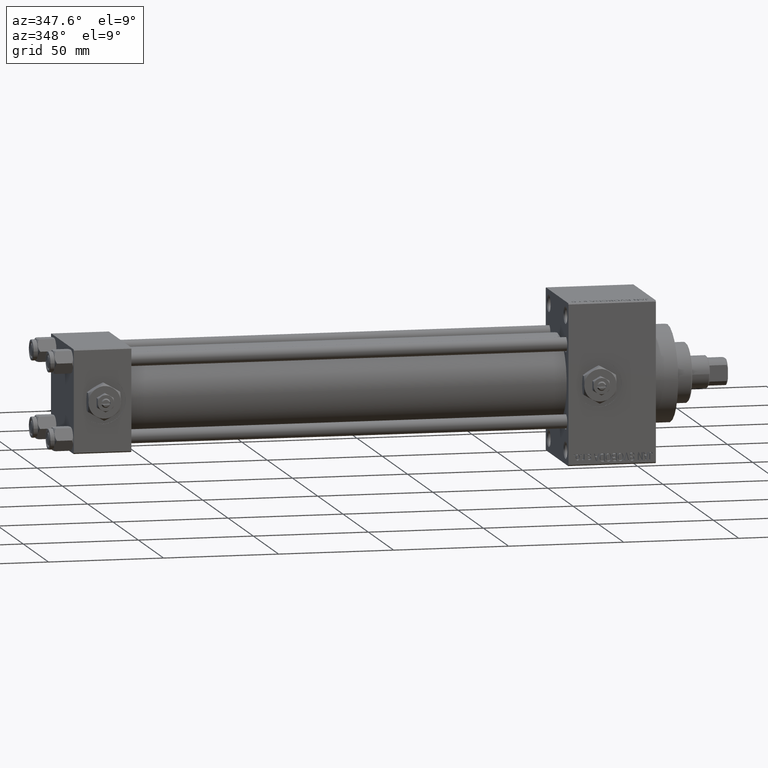
[diagram: clean part render]
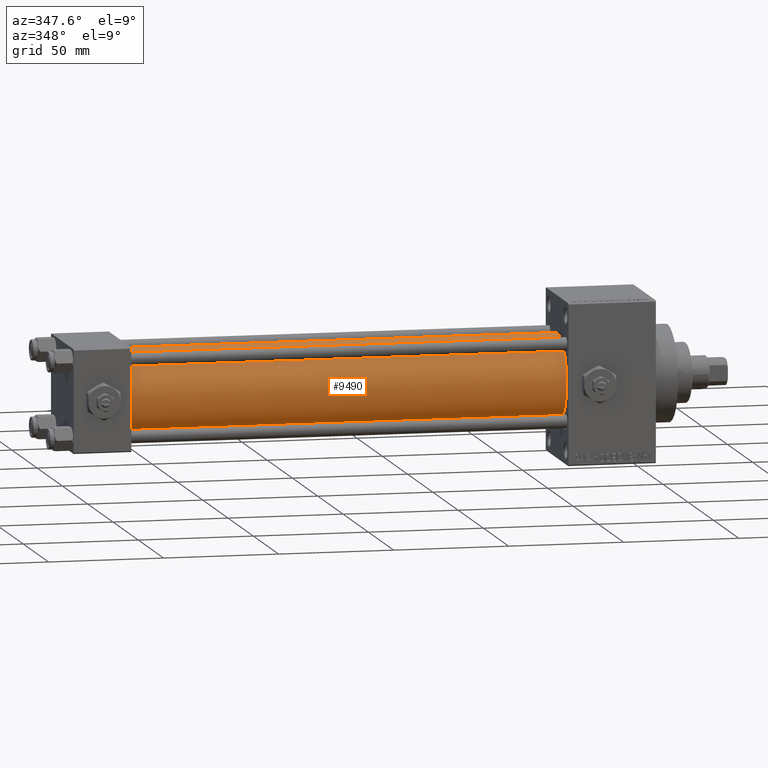
[diagram: same view with one face highlighted and labeled with its STEP entity id]
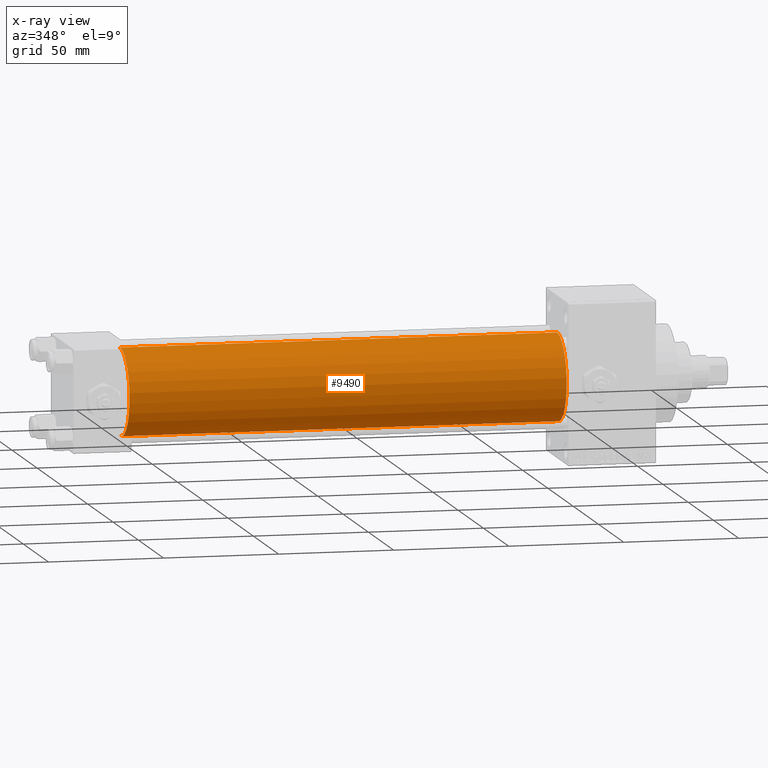
[diagram: x-ray of the same camera — body ghosted, the highlighted face saturated]
A machine part, auxiliary view. The second image highlights one B-rep face of the part: STEP entity #9490.
The next image is the same camera in x-ray: the body ghosted, the highlighted face saturated — about 0% of this face is hidden behind the body in this view.
In plain terms, the highlighted cylindrical surface (partial cylindrical patch) has radius 19 mm, axis along (-1, -0, -0).
Its self-contained STEP definition (entity closure, byte-faithful):
#2402 = VERTEX_POINT ( 'NONE', #45926 ) ;
#4220 = DIRECTION ( 'NONE',  ( 0.000000000000000000, 0.000000000000000000, 1.000000000000000000 ) ) ;
#4552 = CARTESIAN_POINT ( 'NONE',  ( 215.0000000000000000, -2.752562955852396712E-16, -19.00000000000000000 ) ) ;
#6307 = ORIENTED_EDGE ( 'NONE', *, *, #30243, .T. ) ;
#6686 = EDGE_LOOP ( 'NONE', ( #19176, #48849, #6307, #24233 ) ) ;
#6688 = VECTOR ( 'NONE', #16233, 1000.000000000000000 ) ;
#9490 = ADVANCED_FACE ( 'NONE', ( #30211 ), #11254, .T. ) ;
#11254 = CYLINDRICAL_SURFACE ( 'NONE', #25324, 19.00000000000000000 ) ;
#11465 = DIRECTION ( 'NONE',  ( 1.000000000000000000, -0.000000000000000000, 0.000000000000000000 ) ) ;
#13277 = CARTESIAN_POINT ( 'NONE',  ( 24.99999999999999289, -2.752562955852396712E-16, -19.00000000000000000 ) ) ;
#13380 = CARTESIAN_POINT ( 'NONE',  ( 215.0000000000000000, -2.602085213965210642E-15, 0.000000000000000000 ) ) ;
#13884 = DIRECTION ( 'NONE',  ( 1.000000000000000000, 0.000000000000000000, 0.000000000000000000 ) ) ;
#14723 = VERTEX_POINT ( 'NONE', #45352 ) ;
#16233 = DIRECTION ( 'NONE',  ( -1.000000000000000000, -0.000000000000000000, -0.000000000000000000 ) ) ;
#16477 = CARTESIAN_POINT ( 'NONE',  ( 215.0000000000000000, -2.602085213965210642E-15, 19.00000000000000000 ) ) ;
#19176 = ORIENTED_EDGE ( 'NONE', *, *, #27296, .F. ) ;
#19264 = CIRCLE ( 'NONE', #42369, 19.00000000000000000 ) ;
#22419 = EDGE_CURVE ( 'NONE', #2402, #37221, #31095, .T. ) ;
#22731 = DIRECTION ( 'NONE',  ( -1.000000000000000000, -0.000000000000000000, -0.000000000000000000 ) ) ;
#24233 = ORIENTED_EDGE ( 'NONE', *, *, #22419, .T. ) ;
#25324 = AXIS2_PLACEMENT_3D ( 'NONE', #48389, #22731, #37930 ) ;
#27224 = LINE ( 'NONE', #35687, #28879 ) ;
#27296 = EDGE_CURVE ( 'NONE', #33384, #37221, #27224, .T. ) ;
#27702 = LINE ( 'NONE', #16477, #6688 ) ;
#28879 = VECTOR ( 'NONE', #35446, 1000.000000000000000 ) ;
#29331 = DIRECTION ( 'NONE',  ( 0.000000000000000000, 0.000000000000000000, -1.000000000000000000 ) ) ;
#30211 = FACE_OUTER_BOUND ( 'NONE', #6686, .T. ) ;
#30243 = EDGE_CURVE ( 'NONE', #14723, #2402, #27702, .T. ) ;
#31095 = CIRCLE ( 'NONE', #32698, 19.00000000000000000 ) ;
#32698 = AXIS2_PLACEMENT_3D ( 'NONE', #38376, #11465, #4220 ) ;
#33384 = VERTEX_POINT ( 'NONE', #4552 ) ;
#35446 = DIRECTION ( 'NONE',  ( -1.000000000000000000, -0.000000000000000000, -0.000000000000000000 ) ) ;
#35687 = CARTESIAN_POINT ( 'NONE',  ( 215.0000000000000000, -2.752562955852396712E-16, -19.00000000000000000 ) ) ;
#37221 = VERTEX_POINT ( 'NONE', #13277 ) ;
#37930 = DIRECTION ( 'NONE',  ( 0.000000000000000000, 0.000000000000000000, 1.000000000000000000 ) ) ;
#38376 = CARTESIAN_POINT ( 'NONE',  ( 24.99999999999999289, -2.602085213965210642E-15, 0.000000000000000000 ) ) ;
#42369 = AXIS2_PLACEMENT_3D ( 'NONE', #13380, #13884, #29331 ) ;
#45352 = CARTESIAN_POINT ( 'NONE',  ( 215.0000000000000000, -2.602085213965210642E-15, 19.00000000000000000 ) ) ;
#45926 = CARTESIAN_POINT ( 'NONE',  ( 24.99999999999999289, -2.602085213965210642E-15, 19.00000000000000000 ) ) ;
#47331 = EDGE_CURVE ( 'NONE', #14723, #33384, #19264, .T. ) ;
#48389 = CARTESIAN_POINT ( 'NONE',  ( 215.0000000000000000, -2.602085213965210642E-15, 0.000000000000000000 ) ) ;
#48849 = ORIENTED_EDGE ( 'NONE', *, *, #47331, .F. ) ;